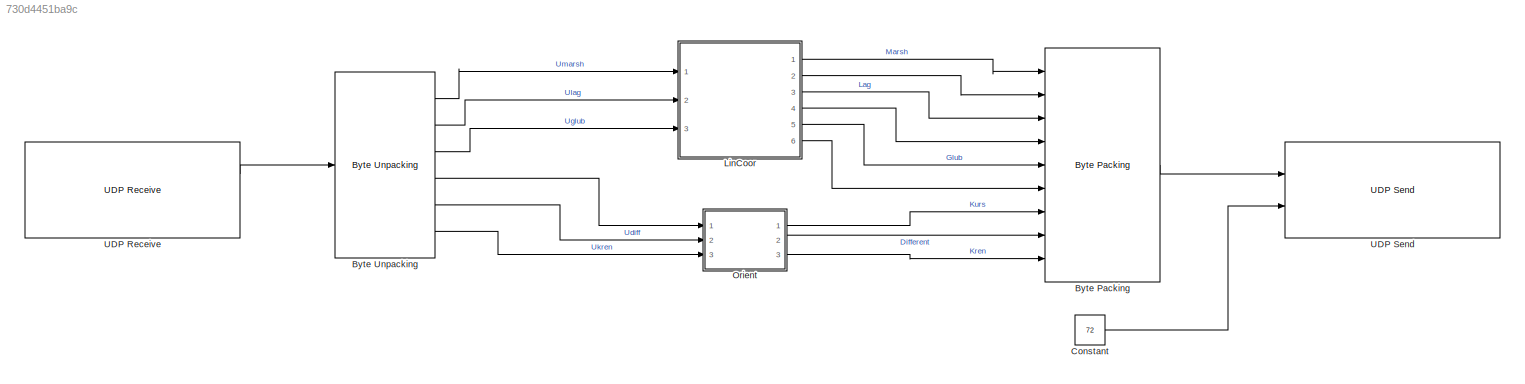
MODEL slx_730d4451ba9c
KIND model
CONFIG AbsTol = auto
CONFIG EnableMultiTasking = off
CONFIG FixedStep = 0.00001
CONFIG MaxStep = auto
CONFIG MinStep = auto
CONFIG RelTol = 1e-3
CONFIG SampleTimeConstraint = Unconstrained
CONFIG Solver = FixedStepAuto
CONFIG SolverName = FixedStepAuto
CONFIG StartTime = 0.0
CONFIG StopTime = inf
BLOCK [Reference] Byte Packing   REF=xpcutilitieslib/Byte Packing 
  Ports = [9, 1]
  SourceBlock = xpcutilitieslib/Byte Packing
  SourceProductBaseCode = XP
  SourceType = xpcbytepacking
BLOCK [Reference] Byte Unpacking   REF=xpcutilitieslib/Byte Unpacking 
  Ports = [1, 6]
  SourceBlock = xpcutilitieslib/Byte Unpacking
  SourceProductBaseCode = XP
  SourceType = xpcbytepacking
BLOCK [Constant] Constant
  Value = 72
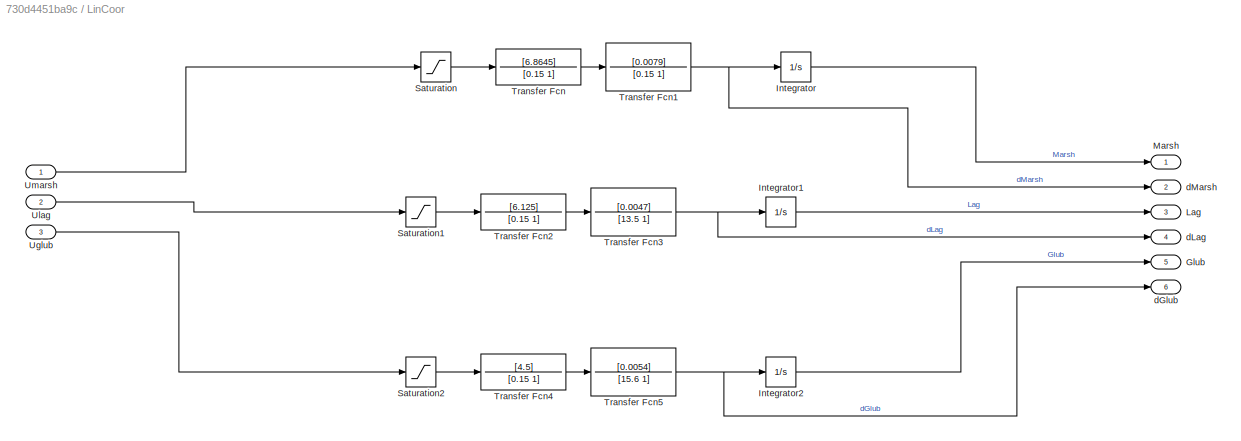
BLOCK [SubSystem] LinCoor
  Ports = [3, 6]
  RequestExecContextInheritance = off
BLOCK [Outport] LinCoor/Glub
  Port = 5
BLOCK [Integrator] LinCoor/Integrator
  Ports = [1, 1]
BLOCK [Integrator] LinCoor/Integrator1
  Ports = [1, 1]
BLOCK [Integrator] LinCoor/Integrator2
  Ports = [1, 1]
BLOCK [Outport] LinCoor/Lag
  Port = 3
BLOCK [Outport] LinCoor/Marsh
BLOCK [Saturate] LinCoor/Saturation
  LowerLimit = -500
  UpperLimit = 500
BLOCK [Saturate] LinCoor/Saturation1
  LowerLimit = -500
  UpperLimit = 500
BLOCK [Saturate] LinCoor/Saturation2
  LowerLimit = -500
  UpperLimit = 500
BLOCK [TransferFcn] LinCoor/Transfer Fcn
  Denominator = [0.15 1]
  Numerator = [6.8645]
BLOCK [TransferFcn] LinCoor/Transfer Fcn1
  Denominator = [0.15 1]
  Numerator = [0.0079]
BLOCK [TransferFcn] LinCoor/Transfer Fcn2
  Denominator = [0.15 1]
  Numerator = [6.125]
BLOCK [TransferFcn] LinCoor/Transfer Fcn3
  Denominator = [13.5 1]
  Numerator = [0.0047]
BLOCK [TransferFcn] LinCoor/Transfer Fcn4
  Denominator = [0.15 1]
  Numerator = [4.5]
BLOCK [TransferFcn] LinCoor/Transfer Fcn5
  Denominator = [15.6 1]
  Numerator = [0.0054]
BLOCK [Inport] LinCoor/Uglub
  Port = 3
BLOCK [Inport] LinCoor/Ulag
  Port = 2
BLOCK [Inport] LinCoor/Umarsh
BLOCK [Outport] LinCoor/dGlub
  Port = 6
BLOCK [Outport] LinCoor/dLag
  Port = 4
BLOCK [Outport] LinCoor/dMarsh
  Port = 2
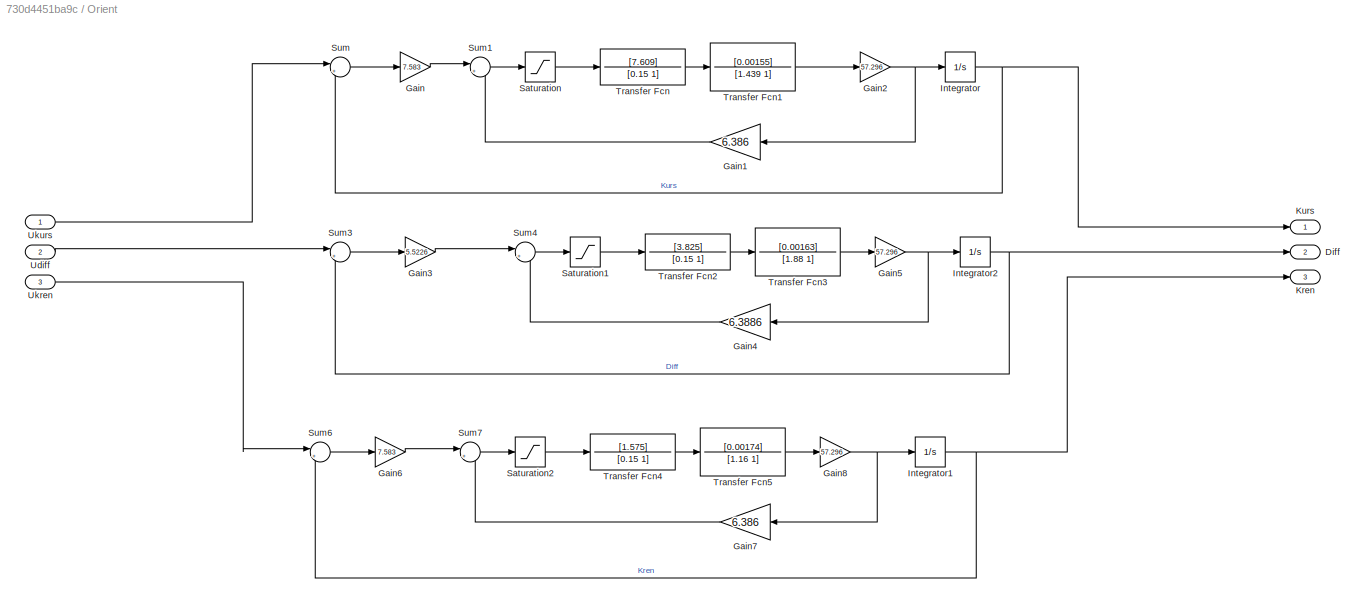
BLOCK [SubSystem] Orient
  Ports = [3, 3]
  RequestExecContextInheritance = off
BLOCK [Outport] Orient/Diff
  Port = 2
BLOCK [Gain] Orient/Gain
  Gain = 7.583
BLOCK [Gain] Orient/Gain1
  Gain = 6.386
BLOCK [Gain] Orient/Gain2
  Gain = 57.296
BLOCK [Gain] Orient/Gain3
  Gain = 5.5226
BLOCK [Gain] Orient/Gain4
  Gain = 6.3886
BLOCK [Gain] Orient/Gain5
  Gain = 57.296
BLOCK [Gain] Orient/Gain6
  Gain = 7.583
BLOCK [Gain] Orient/Gain7
  Gain = 6.386
BLOCK [Gain] Orient/Gain8
  Gain = 57.296
BLOCK [Integrator] Orient/Integrator
  Ports = [1, 1]
BLOCK [Integrator] Orient/Integrator1
  Ports = [1, 1]
BLOCK [Integrator] Orient/Integrator2
  Ports = [1, 1]
BLOCK [Outport] Orient/Kren
  Port = 3
BLOCK [Outport] Orient/Kurs
BLOCK [Saturate] Orient/Saturation
  LowerLimit = -500
  UpperLimit = 500
BLOCK [Saturate] Orient/Saturation1
  LowerLimit = -500
  UpperLimit = 500
BLOCK [Saturate] Orient/Saturation2
  LowerLimit = -500
  UpperLimit = 500
BLOCK [Sum] Orient/Sum
  Inputs = |+-
  Ports = [2, 1]
BLOCK [Sum] Orient/Sum1
  Inputs = |+-
  Ports = [2, 1]
BLOCK [Sum] Orient/Sum3
  Inputs = |+-
  Ports = [2, 1]
BLOCK [Sum] Orient/Sum4
  Inputs = |+-
  Ports = [2, 1]
BLOCK [Sum] Orient/Sum6
  Inputs = |+-
  Ports = [2, 1]
BLOCK [Sum] Orient/Sum7
  Inputs = |+-
  Ports = [2, 1]
BLOCK [TransferFcn] Orient/Transfer Fcn
  Denominator = [0.15 1]
  Numerator = [7.609]
BLOCK [TransferFcn] Orient/Transfer Fcn1
  Denominator = [1.439 1]
  Numerator = [0.00155]
BLOCK [TransferFcn] Orient/Transfer Fcn2
  Denominator = [0.15 1]
  Numerator = [3.825]
BLOCK [TransferFcn] Orient/Transfer Fcn3
  Denominator = [1.88 1]
  Numerator = [0.00163]
BLOCK [TransferFcn] Orient/Transfer Fcn4
  Denominator = [0.15 1]
  Numerator = [1.575]
BLOCK [TransferFcn] Orient/Transfer Fcn5
  Denominator = [1.16 1]
  Numerator = [0.00174]
BLOCK [Inport] Orient/Udiff
  Port = 2
BLOCK [Inport] Orient/Ukren
  Port = 3
BLOCK [Inport] Orient/Ukurs
BLOCK [Reference] UDP Receive  REF=xpcrtudplib/UDP Receive
  Ports = [0, 2]
  SourceBlock = xpcrtudplib/UDP Receive
  SourceProductBaseCode = XP
  SourceType = slrtudpreceive
BLOCK [Reference] UDP Send  REF=xpcrtudplib/UDP Send
  Ports = [2]
  SourceBlock = xpcrtudplib/UDP Send
  SourceProductBaseCode = XP
  SourceType = slrtudpsend
LINE Byte Packing :1 -> UDP Send:1
LINE Byte Unpacking :1 -> LinCoor:1
LINE Byte Unpacking :2 -> LinCoor:2
LINE Byte Unpacking :3 -> LinCoor:3
LINE Byte Unpacking :4 -> Orient:1
LINE Byte Unpacking :5 -> Orient:2
LINE Byte Unpacking :6 -> Orient:3
LINE Constant:1 -> UDP Send:2
LINE LinCoor/Integrator1:1 -> LinCoor/Lag:1
LINE LinCoor/Integrator2:1 -> LinCoor/Glub:1
LINE LinCoor/Integrator:1 -> LinCoor/Marsh:1
LINE LinCoor/Saturation1:1 -> LinCoor/Transfer Fcn2:1
LINE LinCoor/Saturation2:1 -> LinCoor/Transfer Fcn4:1
LINE LinCoor/Saturation:1 -> LinCoor/Transfer Fcn:1
NET LinCoor/Transfer Fcn1:1 -> LinCoor/Integrator:1, LinCoor/dMarsh:1
LINE LinCoor/Transfer Fcn2:1 -> LinCoor/Transfer Fcn3:1
NET LinCoor/Transfer Fcn3:1 -> LinCoor/Integrator1:1, LinCoor/dLag:1
LINE LinCoor/Transfer Fcn4:1 -> LinCoor/Transfer Fcn5:1
NET LinCoor/Transfer Fcn5:1 -> LinCoor/Integrator2:1, LinCoor/dGlub:1
LINE LinCoor/Transfer Fcn:1 -> LinCoor/Transfer Fcn1:1
LINE LinCoor/Uglub:1 -> LinCoor/Saturation2:1
LINE LinCoor/Ulag:1 -> LinCoor/Saturation1:1
LINE LinCoor/Umarsh:1 -> LinCoor/Saturation:1
LINE LinCoor:1 -> Byte Packing :1
LINE LinCoor:2 -> Byte Packing :2
LINE LinCoor:3 -> Byte Packing :3
LINE LinCoor:4 -> Byte Packing :4
LINE LinCoor:5 -> Byte Packing :5
LINE LinCoor:6 -> Byte Packing :6
LINE Orient/Gain1:1 -> Orient/Sum1:2
NET Orient/Gain2:1 -> Orient/Gain1:1, Orient/Integrator:1
LINE Orient/Gain3:1 -> Orient/Sum4:1
LINE Orient/Gain4:1 -> Orient/Sum4:2
NET Orient/Gain5:1 -> Orient/Gain4:1, Orient/Integrator2:1
LINE Orient/Gain6:1 -> Orient/Sum7:1
LINE Orient/Gain7:1 -> Orient/Sum7:2
NET Orient/Gain8:1 -> Orient/Gain7:1, Orient/Integrator1:1
LINE Orient/Gain:1 -> Orient/Sum1:1
NET Orient/Integrator1:1 -> Orient/Kren:1, Orient/Sum6:2
NET Orient/Integrator2:1 -> Orient/Diff:1, Orient/Sum3:2
NET Orient/Integrator:1 -> Orient/Kurs:1, Orient/Sum:2
LINE Orient/Saturation1:1 -> Orient/Transfer Fcn2:1
LINE Orient/Saturation2:1 -> Orient/Transfer Fcn4:1
LINE Orient/Saturation:1 -> Orient/Transfer Fcn:1
LINE Orient/Sum1:1 -> Orient/Saturation:1
LINE Orient/Sum3:1 -> Orient/Gain3:1
LINE Orient/Sum4:1 -> Orient/Saturation1:1
LINE Orient/Sum6:1 -> Orient/Gain6:1
LINE Orient/Sum7:1 -> Orient/Saturation2:1
LINE Orient/Sum:1 -> Orient/Gain:1
LINE Orient/Transfer Fcn1:1 -> Orient/Gain2:1
LINE Orient/Transfer Fcn2:1 -> Orient/Transfer Fcn3:1
LINE Orient/Transfer Fcn3:1 -> Orient/Gain5:1
LINE Orient/Transfer Fcn4:1 -> Orient/Transfer Fcn5:1
LINE Orient/Transfer Fcn5:1 -> Orient/Gain8:1
LINE Orient/Transfer Fcn:1 -> Orient/Transfer Fcn1:1
LINE Orient/Udiff:1 -> Orient/Sum3:1
LINE Orient/Ukren:1 -> Orient/Sum6:1
LINE Orient/Ukurs:1 -> Orient/Sum:1
LINE Orient:1 -> Byte Packing :7
LINE Orient:2 -> Byte Packing :8
LINE Orient:3 -> Byte Packing :9
LINE UDP Receive:1 -> Byte Unpacking :1
note: NET lines group one-source signal fan-out (src -> all destinations, sorted); 1:1 wires keep LINE
